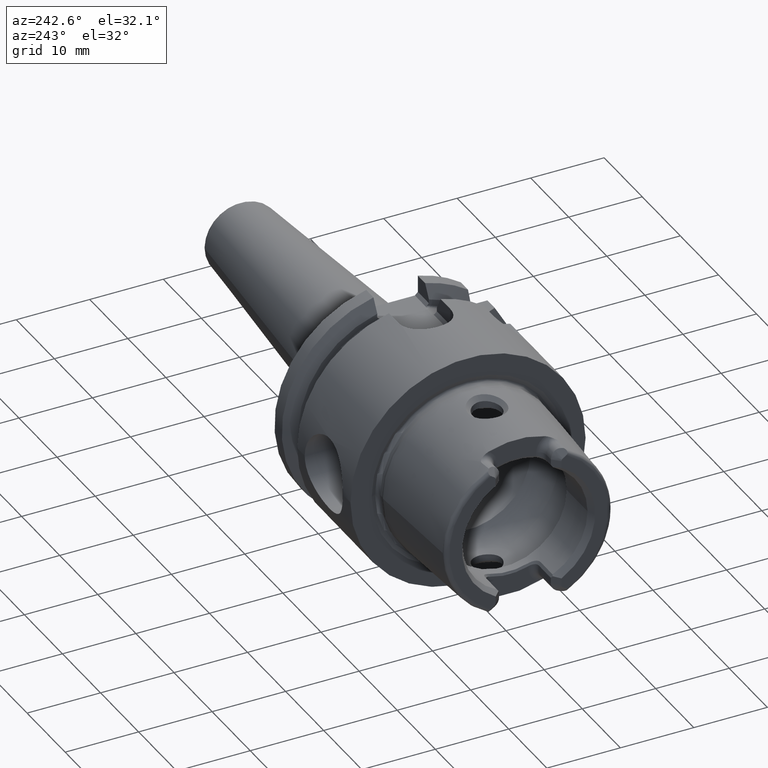
[diagram: clean part render]
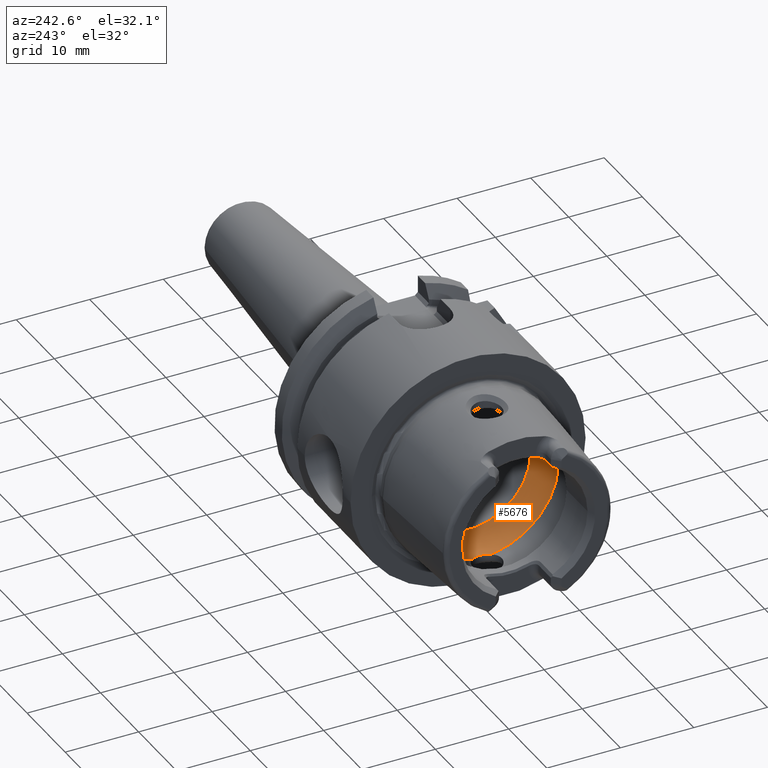
[diagram: same view with one face highlighted and labeled with its STEP entity id]
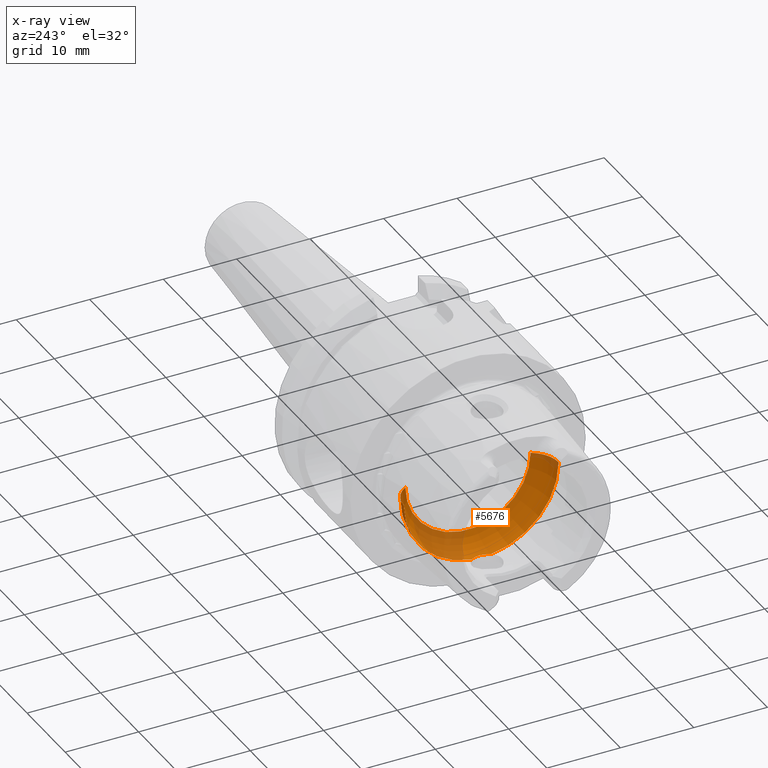
[diagram: x-ray of the same camera — body ghosted, the highlighted face saturated]
A machine part, auxiliary view. The second image highlights one B-rep face of the part: STEP entity #5676.
The next image is the same camera in x-ray: the body ghosted, the highlighted face saturated — about 25% of this face is hidden behind the body in this view.
In plain terms, the highlighted toroidal blend (fillet) surface has major radius 6.5325 mm and minor (blend) radius 4 mm.
Its self-contained STEP definition (entity closure, byte-faithful):
#2110=CARTESIAN_POINT('',(-3.472718675620E0,0.E0,0.E0));
#2111=DIRECTION('',(-1.E0,0.E0,0.E0));
#2112=DIRECTION('',(0.E0,-1.225998564848E-1,-9.924561830075E-1));
#2113=AXIS2_PLACEMENT_3D('',#2110,#2111,#2112);
#2123=CARTESIAN_POINT('',(-3.472718675620E0,0.E0,0.E0));
#2124=DIRECTION('',(-1.E0,0.E0,0.E0));
#2125=DIRECTION('',(0.E0,1.E0,0.E0));
#2126=AXIS2_PLACEMENT_3D('',#2123,#2124,#2125);
#2128=CARTESIAN_POINT('',(-3.472718675620E0,1.291282988427E0,
-1.045304474753E1));
#2129=CARTESIAN_POINT('',(-3.400432544214E0,1.205785650123E0,
-1.046360638399E1));
#2130=CARTESIAN_POINT('',(-3.267257322837E0,1.019454843645E0,
-1.048057496790E1));
#2131=CARTESIAN_POINT('',(-3.111718581191E0,6.921086437112E-1,
-1.049590836050E1));
#2132=CARTESIAN_POINT('',(-3.018836066332E0,3.417574749764E-1,
-1.050317218170E1));
#2133=CARTESIAN_POINT('',(-3.E0,1.126018428041E-1,-1.050446891399E1));
#2134=CARTESIAN_POINT('',(-3.E0,0.E0,-1.050446891399E1));
#2136=CARTESIAN_POINT('',(-3.472718675620E0,6.5325E0,0.E0));
#2137=DIRECTION('',(0.E0,0.E0,1.E0));
#2138=DIRECTION('',(8.681796689050E-1,4.9625E-1,0.E0));
#2139=AXIS2_PLACEMENT_3D('',#2136,#2137,#2138);
#2141=CARTESIAN_POINT('',(0.E0,0.E0,0.E0));
#2142=DIRECTION('',(-1.E0,0.E0,0.E0));
#2143=DIRECTION('',(0.E0,1.E0,0.E0));
#2144=AXIS2_PLACEMENT_3D('',#2141,#2142,#2143);
#2146=CARTESIAN_POINT('',(-3.472718675620E0,-6.5325E0,0.E0));
#2147=DIRECTION('',(0.E0,0.E0,-1.E0));
#2148=DIRECTION('',(8.681796689050E-1,-4.9625E-1,0.E0));
#2149=AXIS2_PLACEMENT_3D('',#2146,#2147,#2148);
#2151=CARTESIAN_POINT('',(-3.E0,0.E0,-1.050446891399E1));
#2152=CARTESIAN_POINT('',(-3.E0,-5.854335763338E-2,-1.050446891399E1));
#2153=CARTESIAN_POINT('',(-3.005144297219E0,-1.756249472105E-1,
-1.050410486731E1));
#2154=CARTESIAN_POINT('',(-3.028230138339E0,-3.498790405816E-1,
-1.050241437513E1));
#2155=CARTESIAN_POINT('',(-3.066503730607E0,-5.214228382588E-1,
-1.049942451873E1));
#2156=CARTESIAN_POINT('',(-3.119664198996E0,-6.889297838518E-1,
-1.049488513413E1));
#2157=CARTESIAN_POINT('',(-3.187292276620E0,-8.510998031881E-1,
-1.048846227005E1));
#2158=CARTESIAN_POINT('',(-3.268834041823E0,-1.006644468235E0,
-1.047975517549E1));
#2159=CARTESIAN_POINT('',(-3.363616242062E0,-1.154336969465E0,
-1.046831296744E1));
#2160=CARTESIAN_POINT('',(-3.435072142508E0,-1.246756074137E0,
-1.045854523550E1));
#2161=CARTESIAN_POINT('',(-3.472718675620E0,-1.291282988427E0,
-1.045304474753E1));
#2961=CARTESIAN_POINT('',(-3.E0,0.E0,-1.050446891399E1));
#2962=VERTEX_POINT('',#2961);
#2975=CARTESIAN_POINT('',(0.E0,8.5175E0,0.E0));
#2976=VERTEX_POINT('',#2975);
#2977=CARTESIAN_POINT('',(-3.472718675620E0,1.05325E1,0.E0));
#2978=VERTEX_POINT('',#2977);
#2987=CARTESIAN_POINT('',(0.E0,-8.5175E0,0.E0));
#2988=VERTEX_POINT('',#2987);
#2989=CARTESIAN_POINT('',(-3.472718675620E0,-1.05325E1,0.E0));
#2990=VERTEX_POINT('',#2989);
#3009=VERTEX_POINT('',#2128);
#3010=VERTEX_POINT('',#2161);
#5661=CARTESIAN_POINT('',(-3.472718675620E0,0.E0,0.E0));
#5662=DIRECTION('',(1.E0,0.E0,0.E0));
#5663=DIRECTION('',(0.E0,-1.E0,0.E0));
#5664=AXIS2_PLACEMENT_3D('',#5661,#5662,#5663);
#5665=TOROIDAL_SURFACE('',#5664,6.5325E0,4.E0);
#5666=ORIENTED_EDGE('',*,*,#5599,.F.);
#5667=ORIENTED_EDGE('',*,*,#5656,.F.);
#5668=ORIENTED_EDGE('',*,*,#5618,.F.);
#5670=ORIENTED_EDGE('',*,*,#5669,.T.);
#5671=ORIENTED_EDGE('',*,*,#5614,.T.);
#5672=ORIENTED_EDGE('',*,*,#5650,.F.);
#5673=ORIENTED_EDGE('',*,*,#5395,.F.);
#5674=EDGE_LOOP('',(#5666,#5667,#5668,#5670,#5671,#5672,#5673));
#5675=FACE_OUTER_BOUND('',#5674,.F.);
#5676=ADVANCED_FACE('',(#5675),#5665,.F.);
#2114=CIRCLE('',#2113,1.05325E1);
#2127=CIRCLE('',#2126,1.05325E1);
#2135=B_SPLINE_CURVE_WITH_KNOTS('',3,(#2128,#2129,#2130,#2131,#2132,#2133,
#2134),.UNSPECIFIED.,.F.,.F.,(4,1,1,1,4),(0.E0,2.5E-1,5.E-1,7.5E-1,1.E0),
.UNSPECIFIED.);
#2140=CIRCLE('',#2139,4.E0);
#2145=CIRCLE('',#2144,8.5175E0);
#2150=CIRCLE('',#2149,4.E0);
#2162=B_SPLINE_CURVE_WITH_KNOTS('',3,(#2151,#2152,#2153,#2154,#2155,#2156,#2157,
#2158,#2159,#2160,#2161),.UNSPECIFIED.,.F.,.F.,(4,1,1,1,1,1,1,1,4),(0.E0,
1.25E-1,2.5E-1,3.75E-1,5.E-1,6.25E-1,7.5E-1,8.75E-1,1.E0),.UNSPECIFIED.);
#5395=EDGE_CURVE('',#2962,#3010,#2162,.T.);
#5599=EDGE_CURVE('',#3009,#2962,#2135,.T.);
#5614=EDGE_CURVE('',#2988,#2990,#2150,.T.);
#5618=EDGE_CURVE('',#2976,#2978,#2140,.T.);
#5650=EDGE_CURVE('',#3010,#2990,#2114,.T.);
#5656=EDGE_CURVE('',#2978,#3009,#2127,.T.);
#5669=EDGE_CURVE('',#2976,#2988,#2145,.T.);